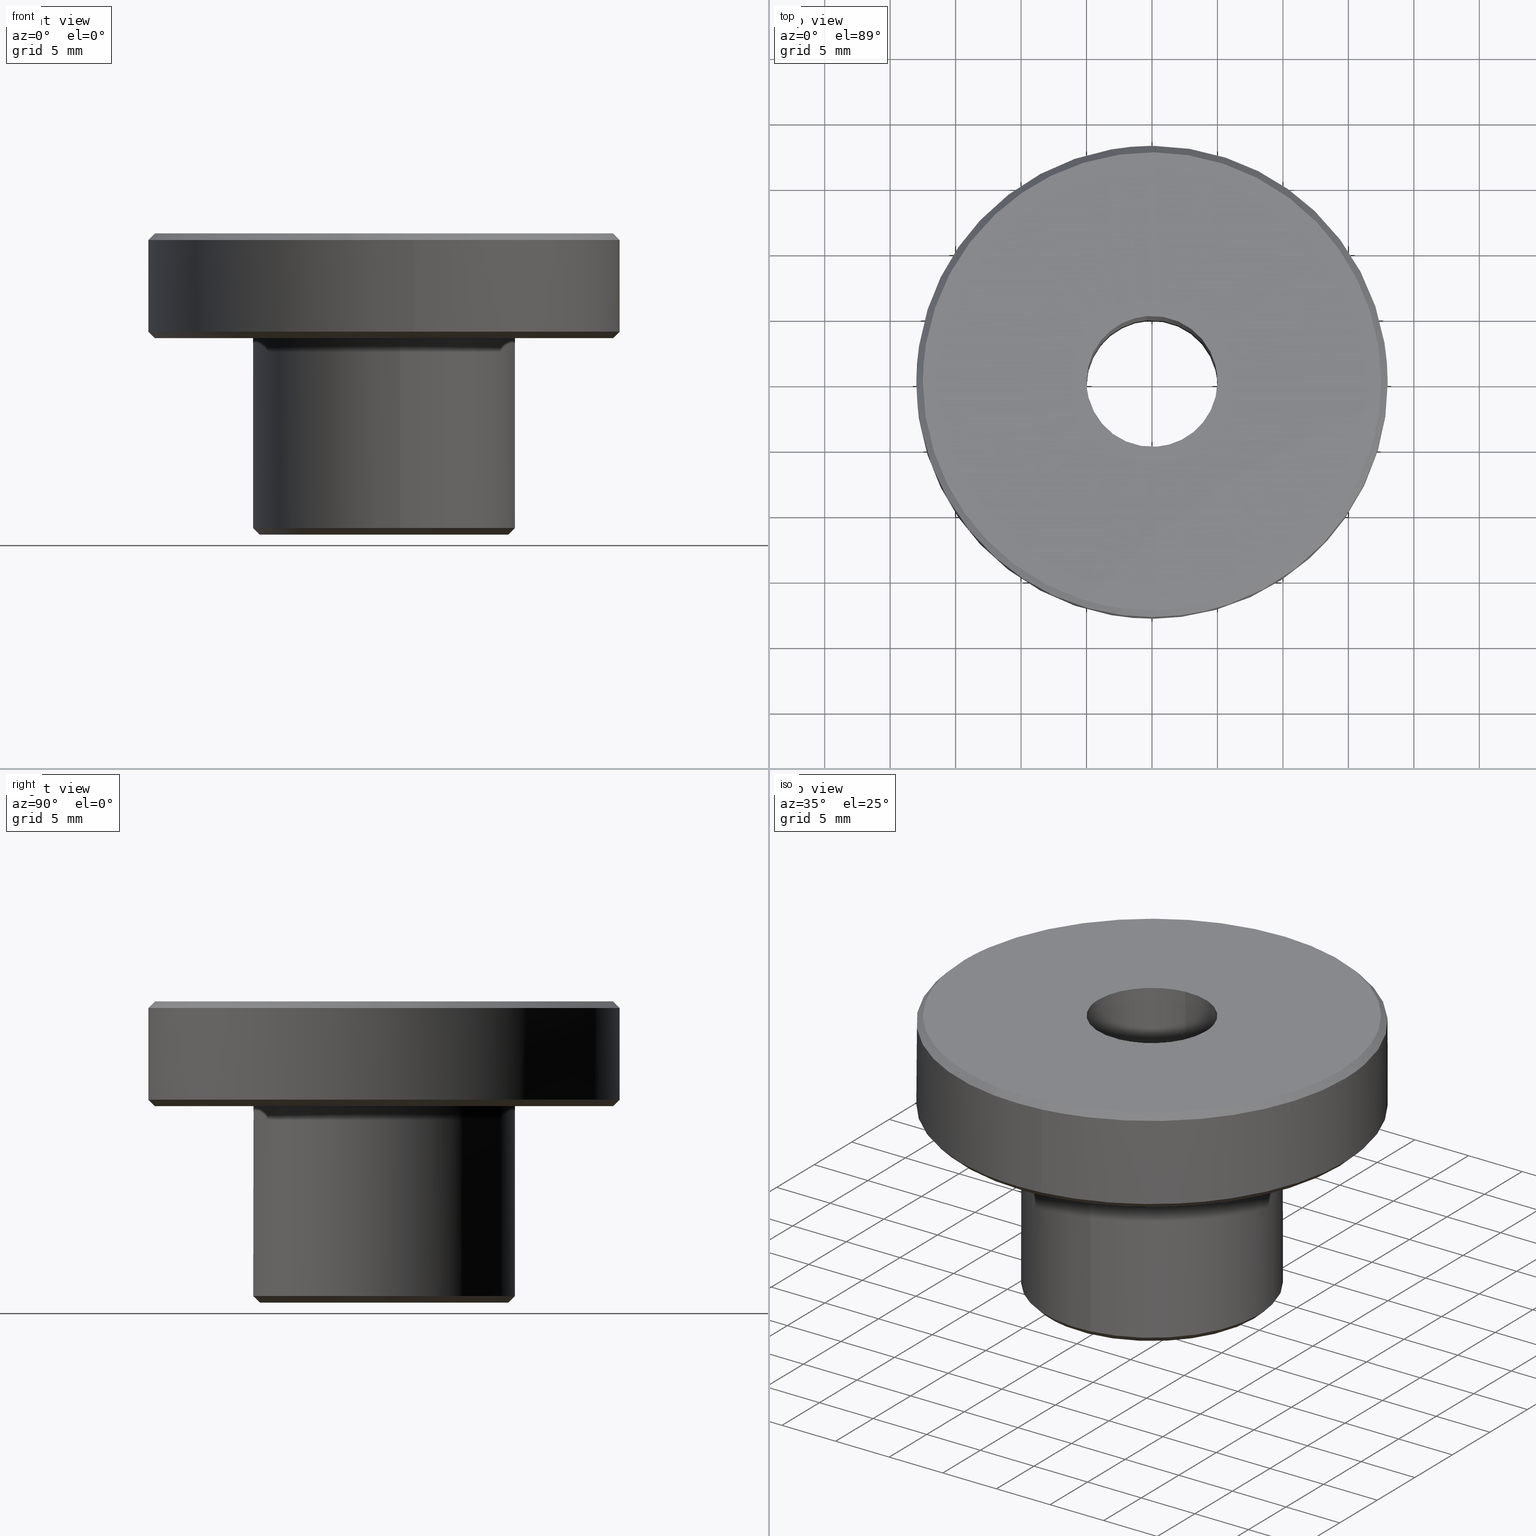
[diagram: canonical four-view strip — front | top / right | iso, engineering-drawing reading convention]
A machine part, canonical four-view strip (front | top / right | iso — engineering-drawing reading convention). The complete STEP part file that produces these views, byte-faithful:
ISO-10303-21;
HEADER;
/****************************************************************
 * Generated by software with PDE/Lib inside                    *
 * PDElib Version 4.4.1-0003, patched  Thursday August 19 11:58 *
 * International Technegroup Inc. (www.iti-oh.com)              *
 ****************************************************************/
FILE_DESCRIPTION((''),'2;1');
FILE_NAME('','2005-07-15T10:45:09',(''),(''),'','CADfix','');
FILE_SCHEMA(('AUTOMOTIVE_DESIGN'));
ENDSEC;
DATA;
#5=APPLICATION_CONTEXT('automotive design');
#6=APPLICATION_PROTOCOL_DEFINITION('Draft International Standard','automotive_design',1998,#5);
#7=PRODUCT_CONTEXT('None',#5,'mechanical');
#8=PRODUCT('knob','','None',(#7));
#9=PRODUCT_RELATED_PRODUCT_CATEGORY('part','description',(#8));
#10=PRODUCT_DEFINITION_FORMATION('None','None',#8);
#11=PRODUCT_DEFINITION_CONTEXT('part definition',#5,'design');
#12=PRODUCT_DEFINITION('None','None',#10,#11);
#18=(NAMED_UNIT(*)PLANE_ANGLE_UNIT()SI_UNIT($,.RADIAN.));
#19=DIMENSIONAL_EXPONENTS(0.0,0.0,0.0,0.0,0.0,0.0,0.0);
#20=PLANE_ANGLE_MEASURE_WITH_UNIT(PLANE_ANGLE_MEASURE(0.017453292500000),#18);
#24=(CONVERSION_BASED_UNIT('DEGREE',#20)NAMED_UNIT(#19)PLANE_ANGLE_UNIT());
#28=(NAMED_UNIT(*)SI_UNIT($,.STERADIAN.)SOLID_ANGLE_UNIT());
#32=(LENGTH_UNIT()NAMED_UNIT(*)SI_UNIT(.MILLI.,.METRE.));
#34=UNCERTAINTY_MEASURE_WITH_UNIT(LENGTH_MEASURE(0.001000000000000),#32,'DISTANCE_ACCURACY_VALUE','');
#36=(GEOMETRIC_REPRESENTATION_CONTEXT(3)GLOBAL_UNCERTAINTY_ASSIGNED_CONTEXT((#34))GLOBAL_UNIT_ASSIGNED_CONTEXT((#24,#28,#32))REPRESENTATION_CONTEXT('None','None'));
#37=AXIS2_PLACEMENT_3D('',#38,#39,#40);
#38=CARTESIAN_POINT('',(0.0,0.0,0.0));
#39=DIRECTION('',(0.0,0.0,1.0));
#40=DIRECTION('',(1.0,0.0,0.0));
#41=ADVANCED_BREP_SHAPE_REPRESENTATION('',(#37,#1111),#36);
#42=PRODUCT_DEFINITION_SHAPE('','',#12);
#43=SHAPE_DEFINITION_REPRESENTATION(#42,#41);
#44=CARTESIAN_POINT('',(-2.170688436371020,-17.352255414274158,23.012499999999999));
#45=CARTESIAN_POINT('',(-17.622727873411552,-15.419275376604753,23.012500000000006));
#46=CARTESIAN_POINT('',(-17.486834129584739,0.152605289527814,23.012499999999999));
#47=CARTESIAN_POINT('',(-17.334228840056934,17.639439419112552,23.012500000000006));
#48=CARTESIAN_POINT('',(0.152605289527814,17.486834129584739,23.012499999999999));
#49=CARTESIAN_POINT('',(-2.235894427463576,-17.873505259724336,22.487187500000001));
#50=CARTESIAN_POINT('',(-18.152102525934822,-15.882459828142810,22.487187500000001));
#51=CARTESIAN_POINT('',(-18.012126627294339,0.157189447706803,22.487187500000001));
#52=CARTESIAN_POINT('',(-17.854937179587541,18.169316075001138,22.487187500000005));
#53=CARTESIAN_POINT('',(0.157189447706803,18.012126627294339,22.487187500000001));
#61=(BOUNDED_SURFACE()B_SPLINE_SURFACE(2,1,((#44,#49),(#45,#50),(#46,#51),(#47,#52),(#48,#53)),.UNSPECIFIED.,.F.,.F.,.U.)B_SPLINE_SURFACE_WITH_KNOTS((3,2,3),(2,2),(0.0,27.457036541059701,57.301641476994170),(0.0,1.0),.UNSPECIFIED.)GEOMETRIC_REPRESENTATION_ITEM()RATIONAL_B_SPLINE_SURFACE(((0.956886118190660,0.956886118190660),(0.730538238691624,0.730538238691624),(1.0,1.0),(0.707106781186548,0.707106781186548),(1.0,1.0)))REPRESENTATION_ITEM('')SURFACE());
#62=CARTESIAN_POINT('',(-2.234304037480998,-17.860791848859769,22.499999999994461));
#63=VERTEX_POINT('',#62);
#64=CARTESIAN_POINT('',(-18.0,0.0,22.500000000000000));
#65=VERTEX_POINT('',#64);
#66=CARTESIAN_POINT('',(-2.234304037480997,-17.860791848859773,22.499999999994454));
#67=CARTESIAN_POINT('',(-18.0,-15.888574802626337,22.500000000000007));
#68=CARTESIAN_POINT('',(-18.0,0.0,22.500000000000000));
#76=(BOUNDED_CURVE()B_SPLINE_CURVE(2,(#66,#67,#68),.UNSPECIFIED.,.F.,.U.)B_SPLINE_CURVE_WITH_KNOTS((3,3),(0.771473928971520,1.0),.UNSPECIFIED.)CURVE()GEOMETRIC_REPRESENTATION_ITEM()RATIONAL_B_SPLINE_CURVE((0.954005430273129,0.732265053894708,1.0))REPRESENTATION_ITEM(''));
#77=EDGE_CURVE('',#63,#65,#76,.T.);
#78=ORIENTED_EDGE('',*,*,#77,.F.);
#79=CARTESIAN_POINT('',(-2.172240036428871,-17.364658741946990,22.999999999996010));
#80=VERTEX_POINT('',#79);
#81=CARTESIAN_POINT('',(-2.172240036428871,-17.364658741946990,22.999999999996010));
#82=CARTESIAN_POINT('',(-2.234304037480998,-17.860791848859769,22.499999999994461));
#83=QUASI_UNIFORM_CURVE('',1,(#81,#82),.UNSPECIFIED.,.F.,.U.);
#84=EDGE_CURVE('',#80,#63,#83,.T.);
#85=ORIENTED_EDGE('',*,*,#84,.F.);
#86=CARTESIAN_POINT('',(-17.500000000000000,0.0,23.0));
#87=VERTEX_POINT('',#86);
#88=CARTESIAN_POINT('',(-17.500000000000000,0.0,23.0));
#89=CARTESIAN_POINT('',(-17.500000000000000,-15.447225502572767,23.0));
#90=CARTESIAN_POINT('',(-2.172240036428871,-17.364658741946986,22.999999999996010));
#98=(BOUNDED_CURVE()B_SPLINE_CURVE(2,(#88,#89,#90),.UNSPECIFIED.,.F.,.U.)B_SPLINE_CURVE_WITH_KNOTS((3,3),(0.500000000000000,0.728526071028690),.UNSPECIFIED.)CURVE()GEOMETRIC_REPRESENTATION_ITEM()RATIONAL_B_SPLINE_CURVE((1.0,0.732265053894462,0.954005430273536))REPRESENTATION_ITEM(''));
#99=EDGE_CURVE('',#87,#80,#98,.T.);
#100=ORIENTED_EDGE('',*,*,#99,.F.);
#101=CARTESIAN_POINT('',(0.152714371254918,17.499333653627261,22.999999999995470));
#102=VERTEX_POINT('',#101);
#103=CARTESIAN_POINT('',(0.152714371254919,17.499333653627257,22.999999999995470));
#104=CARTESIAN_POINT('',(0.076358639395615,17.499999999999996,23.000000000000004));
#105=CARTESIAN_POINT('',(0.0,17.500000000000000,23.0));
#106=CARTESIAN_POINT('',(-17.499999999999996,17.499999999999996,22.999999999999993));
#107=CARTESIAN_POINT('',(-17.500000000000000,0.0,23.0));
#115=(BOUNDED_CURVE()B_SPLINE_CURVE(2,(#103,#104,#105,#106,#107),.UNSPECIFIED.,.F.,.U.)B_SPLINE_CURVE_WITH_KNOTS((3,2,3),(0.248460105664342,0.250000000000000,0.500000000000000),.UNSPECIFIED.)CURVE()GEOMETRIC_REPRESENTATION_ITEM()RATIONAL_B_SPLINE_CURVE((0.996414028098853,0.998195901565586,1.0,0.707106781186548,1.0))REPRESENTATION_ITEM(''));
#116=EDGE_CURVE('',#102,#87,#115,.T.);
#117=ORIENTED_EDGE('',*,*,#116,.F.);
#118=CARTESIAN_POINT('',(0.157077639026141,17.999314615162131,22.499999999992468));
#119=VERTEX_POINT('',#118);
#120=CARTESIAN_POINT('',(0.152714371254918,17.499333653627261,22.999999999995470));
#121=CARTESIAN_POINT('',(0.157077639026141,17.999314615162131,22.499999999992468));
#122=QUASI_UNIFORM_CURVE('',1,(#120,#121),.UNSPECIFIED.,.F.,.U.);
#123=EDGE_CURVE('',#102,#119,#122,.T.);
#124=ORIENTED_EDGE('',*,*,#123,.T.);
#125=CARTESIAN_POINT('',(-0.157065289093424,17.999314722922350,22.500000000000039));
#126=VERTEX_POINT('',#125);
#127=CARTESIAN_POINT('',(-0.157065289093424,17.999314722922346,22.500000000000036));
#128=CARTESIAN_POINT('',(-0.078534139481322,18.0,22.499999999999996));
#129=CARTESIAN_POINT('',(0.0,18.0,22.500000000000000));
#130=CARTESIAN_POINT('',(0.078540314827987,18.0,22.500000000000000));
#131=CARTESIAN_POINT('',(0.157077639026141,17.999314615162131,22.499999999992461));
#139=(BOUNDED_CURVE()B_SPLINE_CURVE(2,(#127,#128,#129,#130,#131),.UNSPECIFIED.,.F.,.U.)B_SPLINE_CURVE_WITH_KNOTS((3,2,3),(0.248460226521948,0.250000000000000,0.251539894336071),.UNSPECIFIED.)CURVE()GEOMETRIC_REPRESENTATION_ITEM()RATIONAL_B_SPLINE_CURVE((0.996414307797352,0.998196043159079,1.0,0.998195901565103,0.996414028097898))REPRESENTATION_ITEM(''));
#140=EDGE_CURVE('',#126,#119,#139,.T.);
#141=ORIENTED_EDGE('',*,*,#140,.F.);
#142=CARTESIAN_POINT('',(-18.0,0.0,22.500000000000000));
#143=CARTESIAN_POINT('',(-18.000000000000004,17.843614034217900,22.499999999999993));
#144=CARTESIAN_POINT('',(-0.157065289093424,17.999314722922346,22.500000000000036));
#152=(BOUNDED_CURVE()B_SPLINE_CURVE(2,(#142,#143,#144),.UNSPECIFIED.,.F.,.U.)B_SPLINE_CURVE_WITH_KNOTS((3,3),(0.0,0.248460226521948),.UNSPECIFIED.)CURVE()GEOMETRIC_REPRESENTATION_ITEM()RATIONAL_B_SPLINE_CURVE((1.0,0.708910738027468,0.996414307797352))REPRESENTATION_ITEM(''));
#153=EDGE_CURVE('',#65,#126,#152,.T.);
#154=ORIENTED_EDGE('',*,*,#153,.F.);
#155=EDGE_LOOP('',(#78,#85,#100,#117,#124,#141,#154));
#156=FACE_OUTER_BOUND('',#155,.T.);
#157=ADVANCED_FACE('',(#156),#61,.T.);
#158=CARTESIAN_POINT('',(0.152605289527814,17.486834129584739,23.012499999999999));
#159=CARTESIAN_POINT('',(17.639439419112552,17.334228840056934,23.012500000000006));
#160=CARTESIAN_POINT('',(17.486834129584739,-0.152605289527814,23.012499999999999));
#161=CARTESIAN_POINT('',(17.334228840056934,-17.639439419112552,23.012500000000006));
#162=CARTESIAN_POINT('',(-0.152605289527814,-17.486834129584739,23.012499999999999));
#163=CARTESIAN_POINT('',(-1.165544654781064,-17.477994341664115,23.012500000000006));
#164=CARTESIAN_POINT('',(-2.170688436371020,-17.352255414274158,23.012499999999999));
#165=CARTESIAN_POINT('',(0.157189447706803,18.012126627294339,22.487187500000001));
#166=CARTESIAN_POINT('',(18.169316075001138,17.854937179587541,22.487187500000005));
#167=CARTESIAN_POINT('',(18.012126627294339,-0.157189447706803,22.487187500000001));
#168=CARTESIAN_POINT('',(17.854937179587541,-18.169316075001138,22.487187500000005));
#169=CARTESIAN_POINT('',(-0.157189447706803,-18.012126627294339,22.487187500000001));
#170=CARTESIAN_POINT('',(-1.200556816408777,-18.003021298210488,22.487187500000001));
#171=CARTESIAN_POINT('',(-2.235894427463576,-17.873505259724336,22.487187500000001));
#179=(BOUNDED_SURFACE()B_SPLINE_SURFACE(2,1,((#158,#165),(#159,#166),(#160,#167),(#161,#168),(#162,#169),(#163,#170),(#164,#171)),.UNSPECIFIED.,.F.,.F.,.U.)B_SPLINE_SURFACE_WITH_KNOTS((3,2,2,3),(2,2),(0.0,29.844604935934470,59.689209871868933,62.076778266743688),(0.0,1.0),.UNSPECIFIED.)GEOMETRIC_REPRESENTATION_ITEM()RATIONAL_B_SPLINE_SURFACE(((1.0,1.0),(0.707106781186548,0.707106781186548),(1.0,1.0),(0.707106781186548,0.707106781186548),(1.0,1.0),(0.976568542494924,0.976568542494924),(0.956886118190660,0.956886118190660)))REPRESENTATION_ITEM('')SURFACE());
#180=CARTESIAN_POINT('',(2.234296449453625,-17.860792798078709,22.500000000000060));
#181=VERTEX_POINT('',#180);
#182=CARTESIAN_POINT('',(2.234296449453625,-17.860792798078712,22.500000000000060));
#183=CARTESIAN_POINT('',(1.121484857198190,-18.000000000000004,22.500000000000004));
#184=CARTESIAN_POINT('',(0.0,-18.0,22.500000000000000));
#185=CARTESIAN_POINT('',(-1.121488695646812,-18.000000000000004,22.500000000000000));
#186=CARTESIAN_POINT('',(-2.234304037480999,-17.860791848859776,22.499999999994454));
#194=(BOUNDED_CURVE()B_SPLINE_CURVE(2,(#182,#183,#184,#185,#186),.UNSPECIFIED.,.F.,.U.)B_SPLINE_CURVE_WITH_KNOTS((3,2,3),(0.728526142676878,0.750000000000000,0.771473928971521),.UNSPECIFIED.)CURVE()GEOMETRIC_REPRESENTATION_ITEM()RATIONAL_B_SPLINE_CURVE((0.954005569315019,0.974841811233160,1.0,0.974841727291839,0.954005430273128))REPRESENTATION_ITEM(''));
#195=EDGE_CURVE('',#181,#63,#194,.T.);
#196=ORIENTED_EDGE('',*,*,#195,.F.);
#197=CARTESIAN_POINT('',(18.0,0.0,22.500000000000000));
#198=VERTEX_POINT('',#197);
#199=CARTESIAN_POINT('',(18.0,0.0,22.500000000000000));
#200=CARTESIAN_POINT('',(18.0,-15.888581605421901,22.499999999999996));
#201=CARTESIAN_POINT('',(2.234296449453625,-17.860792798078712,22.500000000000060));
#209=(BOUNDED_CURVE()B_SPLINE_CURVE(2,(#199,#200,#201),.UNSPECIFIED.,.F.,.U.)B_SPLINE_CURVE_WITH_KNOTS((3,3),(0.500000000000000,0.728526142676878),.UNSPECIFIED.)CURVE()GEOMETRIC_REPRESENTATION_ITEM()RATIONAL_B_SPLINE_CURVE((1.0,0.732264969953387,0.954005569315019))REPRESENTATION_ITEM(''));
#210=EDGE_CURVE('',#198,#181,#209,.T.);
#211=ORIENTED_EDGE('',*,*,#210,.F.);
#212=CARTESIAN_POINT('',(0.157077639026141,17.999314615162135,22.499999999992465));
#213=CARTESIAN_POINT('',(18.0,17.843601790599877,22.500000000000000));
#214=CARTESIAN_POINT('',(18.0,0.0,22.500000000000000));
#222=(BOUNDED_CURVE()B_SPLINE_CURVE(2,(#212,#213,#214),.UNSPECIFIED.,.F.,.U.)B_SPLINE_CURVE_WITH_KNOTS((3,3),(0.251539894336070,0.500000000000000),.UNSPECIFIED.)CURVE()GEOMETRIC_REPRESENTATION_ITEM()RATIONAL_B_SPLINE_CURVE((0.996414028097899,0.708910879621444,1.0))REPRESENTATION_ITEM(''));
#223=EDGE_CURVE('',#119,#198,#222,.T.);
#224=ORIENTED_EDGE('',*,*,#223,.F.);
#225=ORIENTED_EDGE('',*,*,#123,.F.);
#226=CARTESIAN_POINT('',(17.500000000000000,0.0,23.0));
#227=VERTEX_POINT('',#226);
#228=CARTESIAN_POINT('',(17.500000000000000,0.0,23.0));
#229=CARTESIAN_POINT('',(17.500000000000004,17.347946185346032,23.000000000000007));
#230=CARTESIAN_POINT('',(0.152714371254918,17.499333653627264,22.999999999995463));
#238=(BOUNDED_CURVE()B_SPLINE_CURVE(2,(#228,#229,#230),.UNSPECIFIED.,.F.,.U.)B_SPLINE_CURVE_WITH_KNOTS((3,3),(0.0,0.248460105664342),.UNSPECIFIED.)CURVE()GEOMETRIC_REPRESENTATION_ITEM()RATIONAL_B_SPLINE_CURVE((1.0,0.708910879620962,0.996414028098853))REPRESENTATION_ITEM(''));
#239=EDGE_CURVE('',#227,#102,#238,.T.);
#240=ORIENTED_EDGE('',*,*,#239,.F.);
#241=CARTESIAN_POINT('',(-2.172240036428871,-17.364658741946993,22.999999999996014));
#242=CARTESIAN_POINT('',(-1.090336231867875,-17.499999999999996,22.999999999999993));
#243=CARTESIAN_POINT('',(0.0,-17.500000000000000,23.0));
#244=CARTESIAN_POINT('',(17.499999999999996,-17.499999999999996,22.999999999999993));
#245=CARTESIAN_POINT('',(17.500000000000000,0.0,23.0));
#253=(BOUNDED_CURVE()B_SPLINE_CURVE(2,(#241,#242,#243,#244,#245),.UNSPECIFIED.,.F.,.U.)B_SPLINE_CURVE_WITH_KNOTS((3,2,3),(0.728526071028690,0.750000000000000,1.0),.UNSPECIFIED.)CURVE()GEOMETRIC_REPRESENTATION_ITEM()RATIONAL_B_SPLINE_CURVE((0.954005430273537,0.974841727292086,1.0,0.707106781186548,1.0))REPRESENTATION_ITEM(''));
#254=EDGE_CURVE('',#80,#227,#253,.T.);
#255=ORIENTED_EDGE('',*,*,#254,.F.);
#256=ORIENTED_EDGE('',*,*,#84,.T.);
#257=EDGE_LOOP('',(#196,#211,#224,#225,#240,#255,#256));
#258=FACE_OUTER_BOUND('',#257,.T.);
#259=ADVANCED_FACE('',(#258),#179,.T.);
#260=CARTESIAN_POINT('',(14.319921146030703,-10.037555211378052,14.987499999999999));
#261=CARTESIAN_POINT('',(17.535725391208214,-5.449778383031156,14.987499999999997));
#262=CARTESIAN_POINT('',(17.486834129584690,0.152605289527813,14.987500000000001));
#263=CARTESIAN_POINT('',(17.334228840056877,17.639439419112509,14.987499999999997));
#264=CARTESIAN_POINT('',(-0.152605289527813,17.486834129584690,14.987500000000001));
#265=CARTESIAN_POINT('',(-17.639439419112509,17.334228840056877,14.987499999999997));
#266=CARTESIAN_POINT('',(-17.486834129584690,-0.152605289527813,14.987500000000001));
#267=CARTESIAN_POINT('',(-17.334228840056877,-17.639439419112509,14.987499999999997));
#268=CARTESIAN_POINT('',(0.152605289527813,-17.486834129584690,14.987500000000001));
#269=CARTESIAN_POINT('',(14.750081750864162,-10.339076482113015,15.512812500000001));
#270=CARTESIAN_POINT('',(18.062486548867700,-5.613485985995352,15.512812500000004));
#271=CARTESIAN_POINT('',(18.012126627294400,0.157189447706803,15.512812500000001));
#272=CARTESIAN_POINT('',(17.854937179587598,18.169316075001191,15.512812499999999));
#273=CARTESIAN_POINT('',(-0.157189447706803,18.012126627294400,15.512812500000001));
#274=CARTESIAN_POINT('',(-18.169316075001191,17.854937179587598,15.512812499999999));
#275=CARTESIAN_POINT('',(-18.012126627294400,-0.157189447706803,15.512812500000001));
#276=CARTESIAN_POINT('',(-17.854937179587598,-18.169316075001191,15.512812499999999));
#277=CARTESIAN_POINT('',(0.157189447706803,-18.012126627294400,15.512812500000001));
#285=(BOUNDED_SURFACE()B_SPLINE_SURFACE(2,1,((#260,#269),(#261,#270),(#262,#271),(#263,#272),(#264,#273),(#265,#274),(#266,#275),(#267,#276),(#268,#277)),.UNSPECIFIED.,.F.,.F.,.U.)B_SPLINE_SURFACE_WITH_KNOTS((3,2,2,2,3),(2,2),(0.0,11.937841974373820,41.782446910308373,71.627051846242921,101.471656782177500),(0.0,1.0),.UNSPECIFIED.)GEOMETRIC_REPRESENTATION_ITEM()RATIONAL_B_SPLINE_SURFACE(((0.859411254969543,0.859411254969543),(0.882842712474619,0.882842712474619),(1.0,1.0),(0.707106781186548,0.707106781186548),(1.0,1.0),(0.707106781186548,0.707106781186548),(1.0,1.0),(0.707106781186548,0.707106781186548),(1.0,1.0)))REPRESENTATION_ITEM('')SURFACE());
#286=CARTESIAN_POINT('',(17.500000000000000,0.0,15.0));
#287=VERTEX_POINT('',#286);
#288=CARTESIAN_POINT('',(14.330156972439550,-10.044730018534210,15.0));
#289=VERTEX_POINT('',#288);
#290=CARTESIAN_POINT('',(17.500000000000000,0.0,15.0));
#291=CARTESIAN_POINT('',(17.499999999999996,-5.522523042426500,14.999999999999996));
#292=CARTESIAN_POINT('',(14.330156972439546,-10.044730018534207,15.000000000000002));
#300=(BOUNDED_CURVE()B_SPLINE_CURVE(2,(#290,#291,#292),.UNSPECIFIED.,.F.,.U.)B_SPLINE_CURVE_WITH_KNOTS((3,3),(0.0,0.098673726202874),.UNSPECIFIED.)CURVE()GEOMETRIC_REPRESENTATION_ITEM()RATIONAL_B_SPLINE_CURVE((1.0,0.884396538880492,0.860049271925871))REPRESENTATION_ITEM(''));
#301=EDGE_CURVE('',#287,#289,#300,.T.);
#302=ORIENTED_EDGE('',*,*,#301,.F.);
#303=CARTESIAN_POINT('',(-17.500000000000000,0.0,15.0));
#304=VERTEX_POINT('',#303);
#305=CARTESIAN_POINT('',(-17.500000000000000,0.0,15.0));
#306=CARTESIAN_POINT('',(-17.499999999999996,17.499999999999996,14.999999999999995));
#307=CARTESIAN_POINT('',(0.0,17.500000000000000,15.0));
#308=CARTESIAN_POINT('',(17.499999999999996,17.499999999999996,14.999999999999995));
#309=CARTESIAN_POINT('',(17.500000000000000,0.0,15.0));
#317=(BOUNDED_CURVE()B_SPLINE_CURVE(2,(#305,#306,#307,#308,#309),.UNSPECIFIED.,.F.,.U.)B_SPLINE_CURVE_WITH_KNOTS((3,2,3),(0.500000000000000,0.750000000000000,1.0),.UNSPECIFIED.)CURVE()GEOMETRIC_REPRESENTATION_ITEM()RATIONAL_B_SPLINE_CURVE((1.0,0.707106781186548,1.0,0.707106781186548,1.0))REPRESENTATION_ITEM(''));
#318=EDGE_CURVE('',#304,#287,#317,.T.);
#319=ORIENTED_EDGE('',*,*,#318,.F.);
#320=CARTESIAN_POINT('',(0.152714371254917,-17.499333653627250,15.000000000004540));
#321=VERTEX_POINT('',#320);
#322=CARTESIAN_POINT('',(0.152714371254917,-17.499333653627247,15.000000000004546));
#323=CARTESIAN_POINT('',(0.076358639395613,-17.499999999999996,15.000000000000002));
#324=CARTESIAN_POINT('',(0.0,-17.500000000000000,15.0));
#325=CARTESIAN_POINT('',(-17.499999999999996,-17.499999999999996,14.999999999999995));
#326=CARTESIAN_POINT('',(-17.500000000000000,0.0,15.0));
#334=(BOUNDED_CURVE()B_SPLINE_CURVE(2,(#322,#323,#324,#325,#326),.UNSPECIFIED.,.F.,.U.)B_SPLINE_CURVE_WITH_KNOTS((3,2,3),(0.248460105664342,0.250000000000000,0.500000000000000),.UNSPECIFIED.)CURVE()GEOMETRIC_REPRESENTATION_ITEM()RATIONAL_B_SPLINE_CURVE((0.996414028098853,0.998195901565586,1.0,0.707106781186548,1.0))REPRESENTATION_ITEM(''));
#335=EDGE_CURVE('',#321,#304,#334,.T.);
#336=ORIENTED_EDGE('',*,*,#335,.F.);
#337=CARTESIAN_POINT('',(0.157077638971336,-17.999314615155171,15.500000000000069));
#338=VERTEX_POINT('',#337);
#339=CARTESIAN_POINT('',(0.152714371254917,-17.499333653627250,15.000000000004540));
#340=CARTESIAN_POINT('',(0.157077638971336,-17.999314615155171,15.500000000000069));
#341=QUASI_UNIFORM_CURVE('',1,(#339,#340),.UNSPECIFIED.,.F.,.U.);
#342=EDGE_CURVE('',#321,#338,#341,.T.);
#343=ORIENTED_EDGE('',*,*,#342,.T.);
#344=CARTESIAN_POINT('',(-18.0,0.0,15.500000000000000));
#345=VERTEX_POINT('',#344);
#346=CARTESIAN_POINT('',(-18.0,0.0,15.500000000000000));
#347=CARTESIAN_POINT('',(-18.000000000000007,-18.000000000000007,15.500000000000005));
#348=CARTESIAN_POINT('',(0.0,-18.0,15.500000000000000));
#349=CARTESIAN_POINT('',(0.078540314773233,-18.000000000000004,15.499999999999998));
#350=CARTESIAN_POINT('',(0.157077638971336,-17.999314615155175,15.500000000000075));
#358=(BOUNDED_CURVE()B_SPLINE_CURVE(2,(#346,#347,#348,#349,#350),.UNSPECIFIED.,.F.,.U.)B_SPLINE_CURVE_WITH_KNOTS((3,2,3),(0.0,0.250000000000000,0.251539894334999),.UNSPECIFIED.)CURVE()GEOMETRIC_REPRESENTATION_ITEM()RATIONAL_B_SPLINE_CURVE((1.0,0.707106781186547,1.0,0.998195901566358,0.996414028100378))REPRESENTATION_ITEM(''));
#359=EDGE_CURVE('',#345,#338,#358,.T.);
#360=ORIENTED_EDGE('',*,*,#359,.F.);
#361=CARTESIAN_POINT('',(-0.157064489507511,17.999314729899101,15.500000000000000));
#362=VERTEX_POINT('',#361);
#363=CARTESIAN_POINT('',(-0.157064489507511,17.999314729899098,15.500000000000004));
#364=CARTESIAN_POINT('',(-18.0,17.843614826917293,15.499999999999995));
#365=CARTESIAN_POINT('',(-18.0,0.0,15.500000000000000));
#373=(BOUNDED_CURVE()B_SPLINE_CURVE(2,(#363,#364,#365),.UNSPECIFIED.,.F.,.U.)B_SPLINE_CURVE_WITH_KNOTS((3,3),(0.751539765653236,1.0),.UNSPECIFIED.)CURVE()GEOMETRIC_REPRESENTATION_ITEM()RATIONAL_B_SPLINE_CURVE((0.996414325906187,0.708910728860126,1.0))REPRESENTATION_ITEM(''));
#374=EDGE_CURVE('',#362,#345,#373,.T.);
#375=ORIENTED_EDGE('',*,*,#374,.F.);
#376=CARTESIAN_POINT('',(18.0,0.0,15.500000000000000));
#377=VERTEX_POINT('',#376);
#378=CARTESIAN_POINT('',(18.0,0.0,15.500000000000000));
#379=CARTESIAN_POINT('',(18.000000000000007,18.000000000000007,15.500000000000005));
#380=CARTESIAN_POINT('',(0.0,18.0,15.500000000000000));
#381=CARTESIAN_POINT('',(-0.078533739665535,17.999999999999996,15.499999999999998));
#382=CARTESIAN_POINT('',(-0.157064489507511,17.999314729899098,15.500000000000004));
#390=(BOUNDED_CURVE()B_SPLINE_CURVE(2,(#378,#379,#380,#381,#382),.UNSPECIFIED.,.F.,.U.)B_SPLINE_CURVE_WITH_KNOTS((3,2,3),(0.500000000000000,0.750000000000000,0.751539765653236),.UNSPECIFIED.)CURVE()GEOMETRIC_REPRESENTATION_ITEM()RATIONAL_B_SPLINE_CURVE((1.0,0.707106781186547,1.0,0.998196052326421,0.996414325906187))REPRESENTATION_ITEM(''));
#391=EDGE_CURVE('',#377,#362,#390,.T.);
#392=ORIENTED_EDGE('',*,*,#391,.F.);
#393=CARTESIAN_POINT('',(14.739590028790010,-10.331722304785830,15.500000000000380));
#394=VERTEX_POINT('',#393);
#395=CARTESIAN_POINT('',(14.739590028790001,-10.331722304785833,15.500000000000380));
#396=CARTESIAN_POINT('',(17.999999999999993,-5.680309415077398,15.500000000000000));
#397=CARTESIAN_POINT('',(18.0,0.0,15.500000000000000));
#405=(BOUNDED_CURVE()B_SPLINE_CURVE(2,(#395,#396,#397),.UNSPECIFIED.,.F.,.U.)B_SPLINE_CURVE_WITH_KNOTS((3,3),(0.401326273796971,0.500000000000000),.UNSPECIFIED.)CURVE()GEOMETRIC_REPRESENTATION_ITEM()RATIONAL_B_SPLINE_CURVE((0.860049271925794,0.884396538880310,1.0))REPRESENTATION_ITEM(''));
#406=EDGE_CURVE('',#394,#377,#405,.T.);
#407=ORIENTED_EDGE('',*,*,#406,.F.);
#408=CARTESIAN_POINT('',(14.330156972439550,-10.044730018534210,15.0));
#409=CARTESIAN_POINT('',(14.739590028790010,-10.331722304785830,15.500000000000380));
#410=QUASI_UNIFORM_CURVE('',1,(#408,#409),.UNSPECIFIED.,.F.,.U.);
#411=EDGE_CURVE('',#289,#394,#410,.T.);
#412=ORIENTED_EDGE('',*,*,#411,.F.);
#413=EDGE_LOOP('',(#302,#319,#336,#343,#360,#375,#392,#407,#412));
#414=FACE_OUTER_BOUND('',#413,.T.);
#415=ADVANCED_FACE('',(#414),#285,.T.);
#416=CARTESIAN_POINT('',(0.152605289527813,-17.486834129584690,14.987500000000001));
#417=CARTESIAN_POINT('',(9.153404521625713,-17.408285344675011,14.987500000000002));
#418=CARTESIAN_POINT('',(14.319921146030703,-10.037555211378052,14.987499999999999));
#419=CARTESIAN_POINT('',(0.157189447706803,-18.012126627294400,15.512812500000001));
#420=CARTESIAN_POINT('',(9.428366512348630,-17.931218290786557,15.512812500000008));
#421=CARTESIAN_POINT('',(14.750081750864162,-10.339076482113015,15.512812500000001));
#429=(BOUNDED_SURFACE()B_SPLINE_SURFACE(2,1,((#416,#419),(#417,#420),(#418,#421)),.UNSPECIFIED.,.F.,.F.,.U.)B_SPLINE_SURFACE_WITH_KNOTS((3,3),(2,2),(0.0,17.784708021925880),(0.0,1.0),.UNSPECIFIED.)GEOMETRIC_REPRESENTATION_ITEM()RATIONAL_B_SPLINE_SURFACE(((1.0,1.0),(0.824264068711928,0.824264068711928),(0.859411254969543,0.859411254969543)))REPRESENTATION_ITEM('')SURFACE());
#430=CARTESIAN_POINT('',(14.330156972439550,-10.044730018534207,15.000000000000005));
#431=CARTESIAN_POINT('',(9.159947341179224,-17.420728722299302,15.000000000000002));
#432=CARTESIAN_POINT('',(0.152714371254917,-17.499333653627243,15.000000000004542));
#440=(BOUNDED_CURVE()B_SPLINE_CURVE(2,(#430,#431,#432),.UNSPECIFIED.,.F.,.U.)B_SPLINE_CURVE_WITH_KNOTS((3,3),(0.098673726202873,0.248460105664342),.UNSPECIFIED.)CURVE()GEOMETRIC_REPRESENTATION_ITEM()RATIONAL_B_SPLINE_CURVE((0.860049271925871,0.823090203820786,0.996414028098853))REPRESENTATION_ITEM(''));
#441=EDGE_CURVE('',#289,#321,#440,.T.);
#442=ORIENTED_EDGE('',*,*,#441,.F.);
#443=ORIENTED_EDGE('',*,*,#411,.T.);
#444=CARTESIAN_POINT('',(2.234292979299845,-17.860793232175531,15.500000000000000));
#445=VERTEX_POINT('',#444);
#446=CARTESIAN_POINT('',(2.234292979299845,-17.860793232175535,15.500000000000007));
#447=CARTESIAN_POINT('',(10.156768879505131,-16.869732418003473,15.500000000000002));
#448=CARTESIAN_POINT('',(14.739590028790010,-10.331722304785831,15.500000000000387));
#456=(BOUNDED_CURVE()B_SPLINE_CURVE(2,(#446,#447,#448),.UNSPECIFIED.,.F.,.U.)B_SPLINE_CURVE_WITH_KNOTS((3,3),(0.271473824557087,0.401326273796971),.UNSPECIFIED.)CURVE()GEOMETRIC_REPRESENTATION_ITEM()RATIONAL_B_SPLINE_CURVE((0.954005632901279,0.828008805147070,0.860049271925795))REPRESENTATION_ITEM(''));
#457=EDGE_CURVE('',#445,#394,#456,.T.);
#458=ORIENTED_EDGE('',*,*,#457,.F.);
#459=CARTESIAN_POINT('',(0.157077638971336,-17.999314615155168,15.500000000000068));
#460=CARTESIAN_POINT('',(1.199697270601845,-17.990215811473725,15.499999999999998));
#461=CARTESIAN_POINT('',(2.234292979299845,-17.860793232175535,15.500000000000005));
#469=(BOUNDED_CURVE()B_SPLINE_CURVE(2,(#459,#460,#461),.UNSPECIFIED.,.F.,.U.)B_SPLINE_CURVE_WITH_KNOTS((3,3),(0.251539894334999,0.271473824557087),.UNSPECIFIED.)CURVE()GEOMETRIC_REPRESENTATION_ITEM()RATIONAL_B_SPLINE_CURVE((0.996414028100378,0.973347678333298,0.954005632901279))REPRESENTATION_ITEM(''));
#470=EDGE_CURVE('',#338,#445,#469,.T.);
#471=ORIENTED_EDGE('',*,*,#470,.F.);
#472=ORIENTED_EDGE('',*,*,#342,.F.);
#473=EDGE_LOOP('',(#442,#443,#458,#471,#472));
#474=FACE_OUTER_BOUND('',#473,.T.);
#475=ADVANCED_FACE('',(#474),#429,.T.);
#476=CARTESIAN_POINT('',(-3.834993910984958,-8.677872893325199,-0.012499999999999));
#477=CARTESIAN_POINT('',(-1.963370728928781,-9.504995345460285,-0.012499999999999));
#478=CARTESIAN_POINT('',(0.082793005540822,-9.487138745071324,-0.012499999999999));
#479=CARTESIAN_POINT('',(9.569931750612147,-9.404345739530502,-0.012499999999999));
#480=CARTESIAN_POINT('',(9.487138745071324,0.082793005540822,-0.012499999999999));
#481=CARTESIAN_POINT('',(9.404345739530502,9.569931750612147,-0.012499999999999));
#482=CARTESIAN_POINT('',(-0.082793005540822,9.487138745071324,-0.012499999999999));
#483=CARTESIAN_POINT('',(-4.047333330101089,-9.158357225791594,0.512812499999944));
#484=CARTESIAN_POINT('',(-2.072080419157019,-10.031276543606490,0.512812499999944));
#485=CARTESIAN_POINT('',(0.087377163719812,-10.012431242780970,0.512812499999944));
#486=CARTESIAN_POINT('',(10.099808406500783,-9.925054079061161,0.512812499999944));
#487=CARTESIAN_POINT('',(10.012431242780970,0.087377163719812,0.512812499999944));
#488=CARTESIAN_POINT('',(9.925054079061161,10.099808406500783,0.512812499999944));
#489=CARTESIAN_POINT('',(-0.087377163719812,10.012431242780970,0.512812499999944));
#497=(BOUNDED_SURFACE()B_SPLINE_SURFACE(2,1,((#476,#483),(#477,#484),(#478,#485),(#479,#486),(#480,#487),(#481,#488),(#482,#489)),.UNSPECIFIED.,.F.,.F.,.U.)B_SPLINE_SURFACE_WITH_KNOTS((3,2,2,3),(2,2),(0.0,4.645135863198720,21.234906803194139,37.824677743189568),(0.0,1.0),.UNSPECIFIED.)GEOMETRIC_REPRESENTATION_ITEM()RATIONAL_B_SPLINE_SURFACE(((0.881905454174416,0.881905454174416),(0.917989898732233,0.917989898732233),(1.0,1.0),(0.707106781186548,0.707106781186548),(1.0,1.0),(0.707106781186548,0.707106781186548),(1.0,1.0)))REPRESENTATION_ITEM('')SURFACE());
#498=CARTESIAN_POINT('',(-4.042154319909006,-9.146638095721006,0.500000000002636));
#499=VERTEX_POINT('',#498);
#500=CARTESIAN_POINT('',(1.241268919189210,-9.922663527003707,0.499999999999942));
#501=VERTEX_POINT('',#500);
#502=CARTESIAN_POINT('',(-4.042154319909007,-9.146638095721006,0.500000000002636));
#503=CARTESIAN_POINT('',(-2.111156172552140,-9.999999999999998,0.499999999999945));
#504=CARTESIAN_POINT('',(0.0,-10.0,0.499999999999945));
#505=CARTESIAN_POINT('',(0.623043659552424,-10.000000000000002,0.499999999999945));
#506=CARTESIAN_POINT('',(1.241268919189210,-9.922663527003707,0.499999999999942));
#514=(BOUNDED_CURVE()B_SPLINE_CURVE(2,(#502,#503,#504,#505,#506),.UNSPECIFIED.,.F.,.U.)B_SPLINE_CURVE_WITH_KNOTS((3,2,3),(0.181361578458937,0.250000000000000,0.271473740287339),.UNSPECIFIED.)CURVE()GEOMETRIC_REPRESENTATION_ITEM()RATIONAL_B_SPLINE_CURVE((0.883326595750833,0.919585087122254,1.0,0.974841948349109,0.954005796436511))REPRESENTATION_ITEM(''));
#515=EDGE_CURVE('',#499,#501,#514,.T.);
#516=ORIENTED_EDGE('',*,*,#515,.F.);
#517=CARTESIAN_POINT('',(-3.840046603890534,-8.689306190942896,5.149898E-013));
#518=VERTEX_POINT('',#517);
#519=CARTESIAN_POINT('',(-3.840046603890534,-8.689306190942896,5.149898E-013));
#520=CARTESIAN_POINT('',(-4.042154319909006,-9.146638095721006,0.500000000002636));
#521=QUASI_UNIFORM_CURVE('',1,(#519,#520),.UNSPECIFIED.,.F.,.U.);
#522=EDGE_CURVE('',#518,#499,#521,.T.);
#523=ORIENTED_EDGE('',*,*,#522,.F.);
#524=CARTESIAN_POINT('',(9.500000000000000,0.0,0.0));
#525=VERTEX_POINT('',#524);
#526=CARTESIAN_POINT('',(9.500000000000000,0.0,0.0));
#527=CARTESIAN_POINT('',(9.500000000000000,-9.500000000000000,0.0));
#528=CARTESIAN_POINT('',(0.0,-9.500000000000000,0.0));
#529=CARTESIAN_POINT('',(-2.005598363899188,-9.500000000000000,0.0));
#530=CARTESIAN_POINT('',(-3.840046603890533,-8.689306190942896,5.149898E-013));
#538=(BOUNDED_CURVE()B_SPLINE_CURVE(2,(#526,#527,#528,#529,#530),.UNSPECIFIED.,.F.,.U.)B_SPLINE_CURVE_WITH_KNOTS((3,2,3),(0.500000000000000,0.750000000000000,0.818638421540265),.UNSPECIFIED.)CURVE()GEOMETRIC_REPRESENTATION_ITEM()RATIONAL_B_SPLINE_CURVE((1.0,0.707106781186548,1.0,0.919585087123189,0.883326595751676))REPRESENTATION_ITEM(''));
#539=EDGE_CURVE('',#525,#518,#538,.T.);
#540=ORIENTED_EDGE('',*,*,#539,.F.);
#541=CARTESIAN_POINT('',(-0.082902087259469,9.499638269112790,3.381165E-012));
#542=VERTEX_POINT('',#541);
#543=CARTESIAN_POINT('',(-0.082902087259469,9.499638269112790,3.381165E-012));
#544=CARTESIAN_POINT('',(-0.041451832821553,9.500000000000002,0.0));
#545=CARTESIAN_POINT('',(0.0,9.500000000000000,0.0));
#546=CARTESIAN_POINT('',(9.500000000000000,9.500000000000000,0.0));
#547=CARTESIAN_POINT('',(9.500000000000000,0.0,0.0));
#555=(BOUNDED_CURVE()B_SPLINE_CURVE(2,(#543,#544,#545,#546,#547),.UNSPECIFIED.,.F.,.U.)B_SPLINE_CURVE_WITH_KNOTS((3,2,3),(0.248460105664090,0.250000000000000,0.500000000000000),.UNSPECIFIED.)CURVE()GEOMETRIC_REPRESENTATION_ITEM()RATIONAL_B_SPLINE_CURVE((0.996414028098270,0.998195901565291,1.0,0.707106781186548,1.0))REPRESENTATION_ITEM(''));
#556=EDGE_CURVE('',#542,#525,#555,.T.);
#557=ORIENTED_EDGE('',*,*,#556,.F.);
#558=CARTESIAN_POINT('',(-0.087261004263184,9.999619268604203,0.499999999998073));
#559=VERTEX_POINT('',#558);
#560=CARTESIAN_POINT('',(-0.082902087259469,9.499638269112790,3.381165E-012));
#561=CARTESIAN_POINT('',(-0.087261004263184,9.999619268604203,0.499999999998073));
#562=QUASI_UNIFORM_CURVE('',1,(#560,#561),.UNSPECIFIED.,.F.,.U.);
#563=EDGE_CURVE('',#542,#559,#562,.T.);
#564=ORIENTED_EDGE('',*,*,#563,.T.);
#565=CARTESIAN_POINT('',(10.0,0.0,0.499999999999945));
#566=VERTEX_POINT('',#565);
#567=CARTESIAN_POINT('',(10.0,0.0,0.499999999999945));
#568=CARTESIAN_POINT('',(10.000000000000002,10.000000000000002,0.499999999999945));
#569=CARTESIAN_POINT('',(0.0,10.0,0.499999999999945));
#570=CARTESIAN_POINT('',(-0.043631332722512,10.000000000000002,0.499999999999945));
#571=CARTESIAN_POINT('',(-0.087261004263184,9.999619268604203,0.499999999998073));
#579=(BOUNDED_CURVE()B_SPLINE_CURVE(2,(#567,#568,#569,#570,#571),.UNSPECIFIED.,.F.,.U.)B_SPLINE_CURVE_WITH_KNOTS((3,2,3),(0.500000000000000,0.750000000000000,0.751539817697262),.UNSPECIFIED.)CURVE()GEOMETRIC_REPRESENTATION_ITEM()RATIONAL_B_SPLINE_CURVE((1.0,0.707106781186548,1.0,0.998195991353052,0.996414205461629))REPRESENTATION_ITEM(''));
#580=EDGE_CURVE('',#566,#559,#579,.T.);
#581=ORIENTED_EDGE('',*,*,#580,.F.);
#582=CARTESIAN_POINT('',(1.241268919189210,-9.922663527003707,0.499999999999942));
#583=CARTESIAN_POINT('',(10.0,-8.826995954229798,0.499999999999945));
#584=CARTESIAN_POINT('',(10.0,0.0,0.499999999999945));
#592=(BOUNDED_CURVE()B_SPLINE_CURVE(2,(#582,#583,#584),.UNSPECIFIED.,.F.,.U.)B_SPLINE_CURVE_WITH_KNOTS((3,3),(0.271473740287339,0.500000000000000),.UNSPECIFIED.)CURVE()GEOMETRIC_REPRESENTATION_ITEM()RATIONAL_B_SPLINE_CURVE((0.954005796436511,0.732264832837439,1.0))REPRESENTATION_ITEM(''));
#593=EDGE_CURVE('',#501,#566,#592,.T.);
#594=ORIENTED_EDGE('',*,*,#593,.F.);
#595=EDGE_LOOP('',(#516,#523,#540,#557,#564,#581,#594));
#596=FACE_OUTER_BOUND('',#595,.T.);
#597=ADVANCED_FACE('',(#596),#497,.T.);
#598=CARTESIAN_POINT('',(-0.082793005540822,9.487138745071324,-0.012499999999999));
#599=CARTESIAN_POINT('',(-9.569931750612147,9.404345739530502,-0.012499999999999));
#600=CARTESIAN_POINT('',(-9.487138745071324,-0.082793005540822,-0.012499999999999));
#601=CARTESIAN_POINT('',(-9.433722935820269,-6.203638483183840,-0.012499999999999));
#602=CARTESIAN_POINT('',(-3.834993910984958,-8.677872893325199,-0.012499999999999));
#603=CARTESIAN_POINT('',(-0.087377163719812,10.012431242780970,0.512812499999944));
#604=CARTESIAN_POINT('',(-10.099808406500783,9.925054079061161,0.512812499999944));
#605=CARTESIAN_POINT('',(-10.012431242780970,-0.087377163719812,0.512812499999944));
#606=CARTESIAN_POINT('',(-9.956057858584234,-6.547127162045237,0.512812499999944));
#607=CARTESIAN_POINT('',(-4.047333330101089,-9.158357225791594,0.512812499999944));
#615=(BOUNDED_SURFACE()B_SPLINE_SURFACE(2,1,((#598,#603),(#599,#604),(#600,#605),(#601,#606),(#602,#607)),.UNSPECIFIED.,.F.,.F.,.U.)B_SPLINE_SURFACE_WITH_KNOTS((3,2,3),(2,2),(0.0,16.589770939995429,28.534406016792129),(0.0,1.0),.UNSPECIFIED.)GEOMETRIC_REPRESENTATION_ITEM()RATIONAL_B_SPLINE_SURFACE(((1.0,1.0),(0.707106781186548,0.707106781186548),(1.0,1.0),(0.789116882454314,0.789116882454314),(0.881905454174416,0.881905454174416)))REPRESENTATION_ITEM('')SURFACE());
#616=CARTESIAN_POINT('',(-10.0,0.0,0.499999999999945));
#617=VERTEX_POINT('',#616);
#618=CARTESIAN_POINT('',(-10.0,0.0,0.499999999999945));
#619=CARTESIAN_POINT('',(-10.0,-6.513700025870834,0.499999999999945));
#620=CARTESIAN_POINT('',(-4.042154319909006,-9.146638095721007,0.500000000002636));
#628=(BOUNDED_CURVE()B_SPLINE_CURVE(2,(#618,#619,#620),.UNSPECIFIED.,.F.,.U.)B_SPLINE_CURVE_WITH_KNOTS((3,3),(0.0,0.181361578458937),.UNSPECIFIED.)CURVE()GEOMETRIC_REPRESENTATION_ITEM()RATIONAL_B_SPLINE_CURVE((1.0,0.787521694064293,0.883326595750833))REPRESENTATION_ITEM(''));
#629=EDGE_CURVE('',#617,#499,#628,.T.);
#630=ORIENTED_EDGE('',*,*,#629,.F.);
#631=CARTESIAN_POINT('',(-0.087261004263184,9.999619268604203,0.499999999998073));
#632=CARTESIAN_POINT('',(-10.0,9.913116419197188,0.499999999999945));
#633=CARTESIAN_POINT('',(-10.0,0.0,0.499999999999945));
#641=(BOUNDED_CURVE()B_SPLINE_CURVE(2,(#631,#632,#633),.UNSPECIFIED.,.F.,.U.)B_SPLINE_CURVE_WITH_KNOTS((3,3),(0.751539817697262,1.0),.UNSPECIFIED.)CURVE()GEOMETRIC_REPRESENTATION_ITEM()RATIONAL_B_SPLINE_CURVE((0.996414205461629,0.708910789833496,1.0))REPRESENTATION_ITEM(''));
#642=EDGE_CURVE('',#559,#617,#641,.T.);
#643=ORIENTED_EDGE('',*,*,#642,.F.);
#644=ORIENTED_EDGE('',*,*,#563,.F.);
#645=CARTESIAN_POINT('',(-9.500000000000000,0.0,0.0));
#646=VERTEX_POINT('',#645);
#647=CARTESIAN_POINT('',(-9.500000000000000,0.0,0.0));
#648=CARTESIAN_POINT('',(-9.500000000000000,9.417456500602951,0.0));
#649=CARTESIAN_POINT('',(-0.082902087259469,9.499638269112790,3.381165E-012));
#657=(BOUNDED_CURVE()B_SPLINE_CURVE(2,(#647,#648,#649),.UNSPECIFIED.,.F.,.U.)B_SPLINE_CURVE_WITH_KNOTS((3,3),(0.0,0.248460105664090),.UNSPECIFIED.)CURVE()GEOMETRIC_REPRESENTATION_ITEM()RATIONAL_B_SPLINE_CURVE((1.0,0.708910879621257,0.996414028098270))REPRESENTATION_ITEM(''));
#658=EDGE_CURVE('',#646,#542,#657,.T.);
#659=ORIENTED_EDGE('',*,*,#658,.F.);
#660=CARTESIAN_POINT('',(-3.840046603890534,-8.689306190942896,5.149898E-013));
#661=CARTESIAN_POINT('',(-9.500000000000000,-6.188015024611857,0.0));
#662=CARTESIAN_POINT('',(-9.500000000000000,0.0,0.0));
#670=(BOUNDED_CURVE()B_SPLINE_CURVE(2,(#660,#661,#662),.UNSPECIFIED.,.F.,.U.)B_SPLINE_CURVE_WITH_KNOTS((3,3),(0.818638421540265,1.0),.UNSPECIFIED.)CURVE()GEOMETRIC_REPRESENTATION_ITEM()RATIONAL_B_SPLINE_CURVE((0.883326595751676,0.787521694063359,1.0))REPRESENTATION_ITEM(''));
#671=EDGE_CURVE('',#518,#646,#670,.T.);
#672=ORIENTED_EDGE('',*,*,#671,.F.);
#673=ORIENTED_EDGE('',*,*,#522,.T.);
#674=EDGE_LOOP('',(#630,#643,#644,#659,#672,#673));
#675=FACE_OUTER_BOUND('',#674,.T.);
#676=ADVANCED_FACE('',(#675),#615,.T.);
#677=CARTESIAN_POINT('',(0.392295478639228,-4.984586668665638,-0.575000000000001));
#678=CARTESIAN_POINT('',(5.376882147304866,-4.592291190026410,-0.575000000000001));
#679=CARTESIAN_POINT('',(4.984586668665638,0.392295478639228,-0.575000000000001));
#680=CARTESIAN_POINT('',(4.592291190026410,5.376882147304866,-0.575000000000001));
#681=CARTESIAN_POINT('',(-0.392295478639228,4.984586668665638,-0.575000000000001));
#682=CARTESIAN_POINT('',(0.392295478639228,-4.984586668665638,23.589375000000000));
#683=CARTESIAN_POINT('',(5.376882147304866,-4.592291190026410,23.589375000000004));
#684=CARTESIAN_POINT('',(4.984586668665638,0.392295478639228,23.589375000000000));
#685=CARTESIAN_POINT('',(4.592291190026410,5.376882147304866,23.589375000000004));
#686=CARTESIAN_POINT('',(-0.392295478639228,4.984586668665638,23.589375000000000));
#694=(BOUNDED_SURFACE()B_SPLINE_SURFACE(2,1,((#677,#682),(#678,#683),(#679,#684),(#680,#685),(#681,#686)),.UNSPECIFIED.,.F.,.F.,.U.)B_SPLINE_SURFACE_WITH_KNOTS((3,2,3),(2,2),(0.0,8.284271247461899,16.568542494923800),(0.0,24.164375000000010),.UNSPECIFIED.)GEOMETRIC_REPRESENTATION_ITEM()RATIONAL_B_SPLINE_SURFACE(((1.0,1.0),(0.707106781186548,0.707106781186548),(1.0,1.0),(0.707106781186548,0.707106781186548),(1.0,1.0)))REPRESENTATION_ITEM('')SURFACE());
#695=CARTESIAN_POINT('',(5.0,0.0,0.0));
#696=VERTEX_POINT('',#695);
#697=CARTESIAN_POINT('',(0.392295478669359,-4.984586668663267,-8.326673E-016));
#698=VERTEX_POINT('',#697);
#699=CARTESIAN_POINT('',(5.0,0.0,0.0));
#700=CARTESIAN_POINT('',(4.999999999999999,-4.621952458234981,0.0));
#701=CARTESIAN_POINT('',(0.392295478669359,-4.984586668663267,-8.326673E-016));
#709=(BOUNDED_CURVE()B_SPLINE_CURVE(2,(#699,#700,#701),.UNSPECIFIED.,.F.,.U.)B_SPLINE_CURVE_WITH_KNOTS((3,3),(0.0,0.236331300630694),.UNSPECIFIED.)CURVE()GEOMETRIC_REPRESENTATION_ITEM()RATIONAL_B_SPLINE_CURVE((1.0,0.723120658607625,0.969723356167490))REPRESENTATION_ITEM(''));
#710=EDGE_CURVE('',#696,#698,#709,.T.);
#711=ORIENTED_EDGE('',*,*,#710,.T.);
#712=CARTESIAN_POINT('',(0.392295478669359,-4.984586668663267,23.0));
#713=VERTEX_POINT('',#712);
#714=CARTESIAN_POINT('',(0.392295478669359,-4.984586668663267,-8.326673E-016));
#715=CARTESIAN_POINT('',(0.392295478669359,-4.984586668663267,23.0));
#716=QUASI_UNIFORM_CURVE('',1,(#714,#715),.UNSPECIFIED.,.F.,.U.);
#717=EDGE_CURVE('',#698,#713,#716,.T.);
#718=ORIENTED_EDGE('',*,*,#717,.T.);
#719=CARTESIAN_POINT('',(5.0,0.0,23.0));
#720=VERTEX_POINT('',#719);
#721=CARTESIAN_POINT('',(5.0,0.0,23.0));
#722=CARTESIAN_POINT('',(4.999999999999999,-4.621952458234981,22.999999999999996));
#723=CARTESIAN_POINT('',(0.392295478669359,-4.984586668663267,23.000000000000007));
#731=(BOUNDED_CURVE()B_SPLINE_CURVE(2,(#721,#722,#723),.UNSPECIFIED.,.F.,.U.)B_SPLINE_CURVE_WITH_KNOTS((3,3),(0.0,0.236331300630694),.UNSPECIFIED.)CURVE()GEOMETRIC_REPRESENTATION_ITEM()RATIONAL_B_SPLINE_CURVE((1.0,0.723120658607625,0.969723356167490))REPRESENTATION_ITEM(''));
#732=EDGE_CURVE('',#720,#713,#731,.T.);
#733=ORIENTED_EDGE('',*,*,#732,.F.);
#734=CARTESIAN_POINT('',(-0.392295478669359,4.984586668663267,23.0));
#735=VERTEX_POINT('',#734);
#736=CARTESIAN_POINT('',(-0.392295478669359,4.984586668663267,23.0));
#737=CARTESIAN_POINT('',(-0.196450535068621,5.0,23.0));
#738=CARTESIAN_POINT('',(0.0,5.0,23.0));
#739=CARTESIAN_POINT('',(5.000000000000001,5.000000000000001,22.999999999999993));
#740=CARTESIAN_POINT('',(5.0,0.0,23.0));
#748=(BOUNDED_CURVE()B_SPLINE_CURVE(2,(#736,#737,#738,#739,#740),.UNSPECIFIED.,.F.,.U.)B_SPLINE_CURVE_WITH_KNOTS((3,2,3),(0.736331300630694,0.750000000000000,1.0),.UNSPECIFIED.)CURVE()GEOMETRIC_REPRESENTATION_ITEM()RATIONAL_B_SPLINE_CURVE((0.969723356167490,0.983986122578923,1.0,0.707106781186548,1.0))REPRESENTATION_ITEM(''));
#749=EDGE_CURVE('',#735,#720,#748,.T.);
#750=ORIENTED_EDGE('',*,*,#749,.F.);
#751=CARTESIAN_POINT('',(-0.392295478669359,4.984586668663267,-8.326673E-016));
#752=VERTEX_POINT('',#751);
#753=CARTESIAN_POINT('',(-0.392295478669359,4.984586668663267,-8.326673E-016));
#754=CARTESIAN_POINT('',(-0.392295478669359,4.984586668663267,23.0));
#755=QUASI_UNIFORM_CURVE('',1,(#753,#754),.UNSPECIFIED.,.F.,.U.);
#756=EDGE_CURVE('',#752,#735,#755,.T.);
#757=ORIENTED_EDGE('',*,*,#756,.F.);
#758=CARTESIAN_POINT('',(-0.392295478669359,4.984586668663267,-8.326673E-016));
#759=CARTESIAN_POINT('',(-0.196450535068621,5.0,0.0));
#760=CARTESIAN_POINT('',(0.0,5.0,0.0));
#761=CARTESIAN_POINT('',(5.000000000000001,5.000000000000001,0.0));
#762=CARTESIAN_POINT('',(5.0,0.0,0.0));
#770=(BOUNDED_CURVE()B_SPLINE_CURVE(2,(#758,#759,#760,#761,#762),.UNSPECIFIED.,.F.,.U.)B_SPLINE_CURVE_WITH_KNOTS((3,2,3),(0.736331300630694,0.750000000000000,1.0),.UNSPECIFIED.)CURVE()GEOMETRIC_REPRESENTATION_ITEM()RATIONAL_B_SPLINE_CURVE((0.969723356167490,0.983986122578923,1.0,0.707106781186548,1.0))REPRESENTATION_ITEM(''));
#771=EDGE_CURVE('',#752,#696,#770,.T.);
#772=ORIENTED_EDGE('',*,*,#771,.T.);
#773=EDGE_LOOP('',(#711,#718,#733,#750,#757,#772));
#774=FACE_OUTER_BOUND('',#773,.T.);
#775=ADVANCED_FACE('',(#774),#694,.F.);
#776=CARTESIAN_POINT('',(-0.392295478639228,4.984586668665638,-0.575000000000001));
#777=CARTESIAN_POINT('',(-5.376882147304866,4.592291190026410,-0.575000000000001));
#778=CARTESIAN_POINT('',(-4.984586668665638,-0.392295478639228,-0.575000000000001));
#779=CARTESIAN_POINT('',(-4.592291190026410,-5.376882147304866,-0.575000000000001));
#780=CARTESIAN_POINT('',(0.392295478639228,-4.984586668665638,-0.575000000000001));
#781=CARTESIAN_POINT('',(-0.392295478639228,4.984586668665638,23.589375000000000));
#782=CARTESIAN_POINT('',(-5.376882147304866,4.592291190026410,23.589375000000004));
#783=CARTESIAN_POINT('',(-4.984586668665638,-0.392295478639228,23.589375000000000));
#784=CARTESIAN_POINT('',(-4.592291190026410,-5.376882147304866,23.589375000000004));
#785=CARTESIAN_POINT('',(0.392295478639228,-4.984586668665638,23.589375000000000));
#793=(BOUNDED_SURFACE()B_SPLINE_SURFACE(2,1,((#776,#781),(#777,#782),(#778,#783),(#779,#784),(#780,#785)),.UNSPECIFIED.,.F.,.F.,.U.)B_SPLINE_SURFACE_WITH_KNOTS((3,2,3),(2,2),(0.0,8.284271247461899,16.568542494923800),(0.0,24.164375000000010),.UNSPECIFIED.)GEOMETRIC_REPRESENTATION_ITEM()RATIONAL_B_SPLINE_SURFACE(((1.0,1.0),(0.707106781186548,0.707106781186548),(1.0,1.0),(0.707106781186548,0.707106781186548),(1.0,1.0)))REPRESENTATION_ITEM('')SURFACE());
#794=CARTESIAN_POINT('',(-5.0,0.0,0.0));
#795=VERTEX_POINT('',#794);
#796=CARTESIAN_POINT('',(0.392295478669359,-4.984586668663267,-8.326673E-016));
#797=CARTESIAN_POINT('',(0.196450535068621,-5.0,0.0));
#798=CARTESIAN_POINT('',(0.0,-5.0,0.0));
#799=CARTESIAN_POINT('',(-5.000000000000001,-5.000000000000001,0.0));
#800=CARTESIAN_POINT('',(-5.0,0.0,0.0));
#808=(BOUNDED_CURVE()B_SPLINE_CURVE(2,(#796,#797,#798,#799,#800),.UNSPECIFIED.,.F.,.U.)B_SPLINE_CURVE_WITH_KNOTS((3,2,3),(0.236331300630694,0.250000000000000,0.500000000000000),.UNSPECIFIED.)CURVE()GEOMETRIC_REPRESENTATION_ITEM()RATIONAL_B_SPLINE_CURVE((0.969723356167490,0.983986122578923,1.0,0.707106781186548,1.0))REPRESENTATION_ITEM(''));
#809=EDGE_CURVE('',#698,#795,#808,.T.);
#810=ORIENTED_EDGE('',*,*,#809,.T.);
#811=CARTESIAN_POINT('',(-5.0,0.0,0.0));
#812=CARTESIAN_POINT('',(-5.000000000000001,4.621952458234984,0.0));
#813=CARTESIAN_POINT('',(-0.392295478669359,4.984586668663268,-8.326673E-016));
#821=(BOUNDED_CURVE()B_SPLINE_CURVE(2,(#811,#812,#813),.UNSPECIFIED.,.F.,.U.)B_SPLINE_CURVE_WITH_KNOTS((3,3),(0.500000000000000,0.736331300630694),.UNSPECIFIED.)CURVE()GEOMETRIC_REPRESENTATION_ITEM()RATIONAL_B_SPLINE_CURVE((1.0,0.723120658607625,0.969723356167490))REPRESENTATION_ITEM(''));
#822=EDGE_CURVE('',#795,#752,#821,.T.);
#823=ORIENTED_EDGE('',*,*,#822,.T.);
#824=ORIENTED_EDGE('',*,*,#756,.T.);
#825=CARTESIAN_POINT('',(-5.0,0.0,23.0));
#826=VERTEX_POINT('',#825);
#827=CARTESIAN_POINT('',(-5.0,0.0,23.0));
#828=CARTESIAN_POINT('',(-5.000000000000001,4.621952458234984,23.0));
#829=CARTESIAN_POINT('',(-0.392295478669359,4.984586668663268,23.000000000000007));
#837=(BOUNDED_CURVE()B_SPLINE_CURVE(2,(#827,#828,#829),.UNSPECIFIED.,.F.,.U.)B_SPLINE_CURVE_WITH_KNOTS((3,3),(0.500000000000000,0.736331300630694),.UNSPECIFIED.)CURVE()GEOMETRIC_REPRESENTATION_ITEM()RATIONAL_B_SPLINE_CURVE((1.0,0.723120658607625,0.969723356167490))REPRESENTATION_ITEM(''));
#838=EDGE_CURVE('',#826,#735,#837,.T.);
#839=ORIENTED_EDGE('',*,*,#838,.F.);
#840=CARTESIAN_POINT('',(0.392295478669359,-4.984586668663267,23.0));
#841=CARTESIAN_POINT('',(0.196450535068621,-5.0,23.0));
#842=CARTESIAN_POINT('',(0.0,-5.0,23.0));
#843=CARTESIAN_POINT('',(-5.000000000000001,-5.000000000000001,22.999999999999993));
#844=CARTESIAN_POINT('',(-5.0,0.0,23.0));
#852=(BOUNDED_CURVE()B_SPLINE_CURVE(2,(#840,#841,#842,#843,#844),.UNSPECIFIED.,.F.,.U.)B_SPLINE_CURVE_WITH_KNOTS((3,2,3),(0.236331300630694,0.250000000000000,0.500000000000000),.UNSPECIFIED.)CURVE()GEOMETRIC_REPRESENTATION_ITEM()RATIONAL_B_SPLINE_CURVE((0.969723356167490,0.983986122578923,1.0,0.707106781186548,1.0))REPRESENTATION_ITEM(''));
#853=EDGE_CURVE('',#713,#826,#852,.T.);
#854=ORIENTED_EDGE('',*,*,#853,.F.);
#855=ORIENTED_EDGE('',*,*,#717,.F.);
#856=EDGE_LOOP('',(#810,#823,#824,#839,#854,#855));
#857=FACE_OUTER_BOUND('',#856,.T.);
#858=ADVANCED_FACE('',(#857),#793,.F.);
#859=CARTESIAN_POINT('',(1.241280020798293,-9.922662138255385,0.137499999999943));
#860=CARTESIAN_POINT('',(10.077328305024446,-8.817312581332210,0.137499999999943));
#861=CARTESIAN_POINT('',(9.999619230641709,0.087265354983739,0.137499999999943));
#862=CARTESIAN_POINT('',(9.912353875657971,10.086884585625448,0.137499999999943));
#863=CARTESIAN_POINT('',(-0.087265354983739,9.999619230641709,0.137499999999943));
#864=CARTESIAN_POINT('',(1.241280020798293,-9.922662138255385,15.371562500000005));
#865=CARTESIAN_POINT('',(10.077328305024446,-8.817312581332210,15.371562500000008));
#866=CARTESIAN_POINT('',(9.999619230641709,0.087265354983739,15.371562500000000));
#867=CARTESIAN_POINT('',(9.912353875657971,10.086884585625448,15.371562500000001));
#868=CARTESIAN_POINT('',(-0.087265354983739,9.999619230641709,15.371562500000000));
#876=(BOUNDED_SURFACE()B_SPLINE_SURFACE(2,1,((#859,#864),(#860,#865),(#861,#866),(#862,#867),(#863,#868)),.UNSPECIFIED.,.F.,.F.,.U.)B_SPLINE_SURFACE_WITH_KNOTS((3,2,3),(2,2),(0.0,15.243059095329890,31.811601590253691),(0.0,15.234062500000061),.UNSPECIFIED.)GEOMETRIC_REPRESENTATION_ITEM()RATIONAL_B_SPLINE_SURFACE(((0.956886118190660,0.956886118190660),(0.730538238691624,0.730538238691624),(1.0,1.0),(0.707106781186548,0.707106781186548),(1.0,1.0)))REPRESENTATION_ITEM('')SURFACE());
#877=ORIENTED_EDGE('',*,*,#593,.T.);
#878=ORIENTED_EDGE('',*,*,#580,.T.);
#879=CARTESIAN_POINT('',(-0.087256334427209,9.999619309354777,15.0));
#880=VERTEX_POINT('',#879);
#881=CARTESIAN_POINT('',(-0.087261004263184,9.999619268604203,0.499999999998073));
#882=CARTESIAN_POINT('',(-0.087256334427209,9.999619309354777,15.0));
#883=QUASI_UNIFORM_CURVE('',1,(#881,#882),.UNSPECIFIED.,.F.,.U.);
#884=EDGE_CURVE('',#559,#880,#883,.T.);
#885=ORIENTED_EDGE('',*,*,#884,.T.);
#886=CARTESIAN_POINT('',(10.0,0.0,15.0));
#887=VERTEX_POINT('',#886);
#888=CARTESIAN_POINT('',(-0.087256334427209,9.999619309354777,15.000000000000005));
#889=CARTESIAN_POINT('',(-0.043628997671177,10.0,14.999999999999996));
#890=CARTESIAN_POINT('',(0.0,10.0,15.0));
#891=CARTESIAN_POINT('',(10.000000000000002,10.000000000000002,14.999999999999995));
#892=CARTESIAN_POINT('',(10.0,0.0,15.0));
#900=(BOUNDED_CURVE()B_SPLINE_CURVE(2,(#888,#889,#890,#891,#892),.UNSPECIFIED.,.F.,.U.)B_SPLINE_CURVE_WITH_KNOTS((3,2,3),(0.248460264561681,0.250000000000000,0.500000000000000),.UNSPECIFIED.)CURVE()GEOMETRIC_REPRESENTATION_ITEM()RATIONAL_B_SPLINE_CURVE((0.996414395832051,0.998196087725398,1.0,0.707106781186548,1.0))REPRESENTATION_ITEM(''));
#901=EDGE_CURVE('',#880,#887,#900,.T.);
#902=ORIENTED_EDGE('',*,*,#901,.T.);
#903=CARTESIAN_POINT('',(1.241279027887399,-9.922662262463934,15.0));
#904=VERTEX_POINT('',#903);
#905=CARTESIAN_POINT('',(10.0,0.0,15.0));
#906=CARTESIAN_POINT('',(10.0,-8.826986891658692,15.000000000000007));
#907=CARTESIAN_POINT('',(1.241279027887399,-9.922662262463934,15.000000000000002));
#915=(BOUNDED_CURVE()B_SPLINE_CURVE(2,(#905,#906,#907),.UNSPECIFIED.,.F.,.U.)B_SPLINE_CURVE_WITH_KNOTS((3,3),(0.500000000000000,0.728526087904849),.UNSPECIFIED.)CURVE()GEOMETRIC_REPRESENTATION_ITEM()RATIONAL_B_SPLINE_CURVE((1.0,0.732265034122812,0.954005463023639))REPRESENTATION_ITEM(''));
#916=EDGE_CURVE('',#887,#904,#915,.T.);
#917=ORIENTED_EDGE('',*,*,#916,.T.);
#918=CARTESIAN_POINT('',(1.241268919189210,-9.922663527003707,0.499999999999942));
#919=CARTESIAN_POINT('',(1.241279027887399,-9.922662262463934,15.0));
#920=QUASI_UNIFORM_CURVE('',1,(#918,#919),.UNSPECIFIED.,.F.,.U.);
#921=EDGE_CURVE('',#501,#904,#920,.T.);
#922=ORIENTED_EDGE('',*,*,#921,.F.);
#923=EDGE_LOOP('',(#877,#878,#885,#902,#917,#922));
#924=FACE_OUTER_BOUND('',#923,.T.);
#925=ADVANCED_FACE('',(#924),#876,.T.);
#926=CARTESIAN_POINT('',(-0.087265354983739,9.999619230641709,0.137499999999943));
#927=CARTESIAN_POINT('',(-10.086884585625448,9.912353875657971,0.137499999999943));
#928=CARTESIAN_POINT('',(-9.999619230641709,-0.087265354983739,0.137499999999943));
#929=CARTESIAN_POINT('',(-9.912353875657971,-10.086884585625448,0.137499999999943));
#930=CARTESIAN_POINT('',(0.087265354983739,-9.999619230641709,0.137499999999943));
#931=CARTESIAN_POINT('',(0.666501589581736,-9.994564312602755,0.137499999999943));
#932=CARTESIAN_POINT('',(1.241280020798293,-9.922662138255385,0.137499999999943));
#933=CARTESIAN_POINT('',(-0.087265354983739,9.999619230641709,15.371562500000000));
#934=CARTESIAN_POINT('',(-10.086884585625448,9.912353875657971,15.371562500000001));
#935=CARTESIAN_POINT('',(-9.999619230641709,-0.087265354983739,15.371562500000000));
#936=CARTESIAN_POINT('',(-9.912353875657971,-10.086884585625448,15.371562500000001));
#937=CARTESIAN_POINT('',(0.087265354983739,-9.999619230641709,15.371562500000000));
#938=CARTESIAN_POINT('',(0.666501589581736,-9.994564312602755,15.371562500000001));
#939=CARTESIAN_POINT('',(1.241280020798293,-9.922662138255385,15.371562500000005));
#947=(BOUNDED_SURFACE()B_SPLINE_SURFACE(2,1,((#926,#933),(#927,#934),(#928,#935),(#929,#936),(#930,#937),(#931,#938),(#932,#939)),.UNSPECIFIED.,.F.,.F.,.U.)B_SPLINE_SURFACE_WITH_KNOTS((3,2,2,3),(2,2),(0.0,16.568542494923800,33.137084989847587,34.462568389441500),(0.0,15.234062500000061),.UNSPECIFIED.)GEOMETRIC_REPRESENTATION_ITEM()RATIONAL_B_SPLINE_SURFACE(((1.0,1.0),(0.707106781186548,0.707106781186548),(1.0,1.0),(0.707106781186548,0.707106781186548),(1.0,1.0),(0.976568542494924,0.976568542494924),(0.956886118190660,0.956886118190660)))REPRESENTATION_ITEM('')SURFACE());
#948=ORIENTED_EDGE('',*,*,#629,.T.);
#949=ORIENTED_EDGE('',*,*,#515,.T.);
#950=ORIENTED_EDGE('',*,*,#921,.T.);
#951=CARTESIAN_POINT('',(-10.0,0.0,15.0));
#952=VERTEX_POINT('',#951);
#953=CARTESIAN_POINT('',(1.241279027887399,-9.922662262463934,15.000000000000002));
#954=CARTESIAN_POINT('',(0.623048773067885,-10.0,15.000000000000002));
#955=CARTESIAN_POINT('',(0.0,-10.0,15.0));
#956=CARTESIAN_POINT('',(-10.000000000000002,-10.000000000000002,14.999999999999995));
#957=CARTESIAN_POINT('',(-10.0,0.0,15.0));
#965=(BOUNDED_CURVE()B_SPLINE_CURVE(2,(#953,#954,#955,#956,#957),.UNSPECIFIED.,.F.,.U.)B_SPLINE_CURVE_WITH_KNOTS((3,2,3),(0.728526087904849,0.750000000000000,1.0),.UNSPECIFIED.)CURVE()GEOMETRIC_REPRESENTATION_ITEM()RATIONAL_B_SPLINE_CURVE((0.954005463023639,0.974841747063736,1.0,0.707106781186548,1.0))REPRESENTATION_ITEM(''));
#966=EDGE_CURVE('',#904,#952,#965,.T.);
#967=ORIENTED_EDGE('',*,*,#966,.T.);
#968=CARTESIAN_POINT('',(-10.0,0.0,15.0));
#969=CARTESIAN_POINT('',(-10.0,9.913121048813546,15.0));
#970=CARTESIAN_POINT('',(-0.087256334427209,9.999619309354777,15.000000000000005));
#978=(BOUNDED_CURVE()B_SPLINE_CURVE(2,(#968,#969,#970),.UNSPECIFIED.,.F.,.U.)B_SPLINE_CURVE_WITH_KNOTS((3,3),(0.0,0.248460264561681),.UNSPECIFIED.)CURVE()GEOMETRIC_REPRESENTATION_ITEM()RATIONAL_B_SPLINE_CURVE((1.0,0.708910693461149,0.996414395832051))REPRESENTATION_ITEM(''));
#979=EDGE_CURVE('',#952,#880,#978,.T.);
#980=ORIENTED_EDGE('',*,*,#979,.T.);
#981=ORIENTED_EDGE('',*,*,#884,.F.);
#982=ORIENTED_EDGE('',*,*,#642,.T.);
#983=EDGE_LOOP('',(#948,#949,#950,#967,#980,#981,#982));
#984=FACE_OUTER_BOUND('',#983,.T.);
#985=ADVANCED_FACE('',(#984),#947,.T.);
#986=CARTESIAN_POINT('',(2.234304037436927,-17.860791848859694,15.324999999999998));
#987=CARTESIAN_POINT('',(18.139190949044000,-15.871162646397979,15.324999999999994));
#988=CARTESIAN_POINT('',(17.999314615155079,0.157077638970730,15.324999999999999));
#989=CARTESIAN_POINT('',(17.842236976184342,18.156392254125802,15.324999999999998));
#990=CARTESIAN_POINT('',(-0.157077638970730,17.999314615155079,15.324999999999999));
#991=CARTESIAN_POINT('',(2.234304037436927,-17.860791848859694,22.679375000000004));
#992=CARTESIAN_POINT('',(18.139190949044000,-15.871162646397979,22.679375000000007));
#993=CARTESIAN_POINT('',(17.999314615155079,0.157077638970730,22.679375000000000));
#994=CARTESIAN_POINT('',(17.842236976184342,18.156392254125802,22.679375000000000));
#995=CARTESIAN_POINT('',(-0.157077638970730,17.999314615155079,22.679375000000000));
#1003=(BOUNDED_SURFACE()B_SPLINE_SURFACE(2,1,((#986,#991),(#987,#992),(#988,#993),(#989,#994),(#990,#995)),.UNSPECIFIED.,.F.,.F.,.U.)B_SPLINE_SURFACE_WITH_KNOTS((3,2,3),(2,2),(0.0,27.437506371593798,57.260882862456640),(0.0,7.354375000000009),.UNSPECIFIED.)GEOMETRIC_REPRESENTATION_ITEM()RATIONAL_B_SPLINE_SURFACE(((0.956886118190660,0.956886118190660),(0.730538238691624,0.730538238691624),(1.0,1.0),(0.707106781186548,0.707106781186548),(1.0,1.0)))REPRESENTATION_ITEM('')SURFACE());
#1004=ORIENTED_EDGE('',*,*,#210,.T.);
#1005=CARTESIAN_POINT('',(2.234292979299845,-17.860793232175531,15.500000000000000));
#1006=CARTESIAN_POINT('',(2.234296449453625,-17.860792798078709,22.500000000000060));
#1007=QUASI_UNIFORM_CURVE('',1,(#1005,#1006),.UNSPECIFIED.,.F.,.U.);
#1008=EDGE_CURVE('',#445,#181,#1007,.T.);
#1009=ORIENTED_EDGE('',*,*,#1008,.F.);
#1010=ORIENTED_EDGE('',*,*,#457,.T.);
#1011=ORIENTED_EDGE('',*,*,#406,.T.);
#1012=ORIENTED_EDGE('',*,*,#391,.T.);
#1013=CARTESIAN_POINT('',(-0.157064489507511,17.999314729899101,15.500000000000000));
#1014=CARTESIAN_POINT('',(-0.157065289093424,17.999314722922350,22.500000000000039));
#1015=QUASI_UNIFORM_CURVE('',1,(#1013,#1014),.UNSPECIFIED.,.F.,.U.);
#1016=EDGE_CURVE('',#362,#126,#1015,.T.);
#1017=ORIENTED_EDGE('',*,*,#1016,.T.);
#1018=ORIENTED_EDGE('',*,*,#140,.T.);
#1019=ORIENTED_EDGE('',*,*,#223,.T.);
#1020=EDGE_LOOP('',(#1004,#1009,#1010,#1011,#1012,#1017,#1018,#1019));
#1021=FACE_OUTER_BOUND('',#1020,.T.);
#1022=ADVANCED_FACE('',(#1021),#1003,.T.);
#1023=CARTESIAN_POINT('',(-0.157077638970730,17.999314615155079,15.324999999999999));
#1024=CARTESIAN_POINT('',(-18.156392254125802,17.842236976184342,15.324999999999998));
#1025=CARTESIAN_POINT('',(-17.999314615155079,-0.157077638970730,15.324999999999999));
#1026=CARTESIAN_POINT('',(-17.842236976184342,-18.156392254125802,15.324999999999998));
#1027=CARTESIAN_POINT('',(0.157077638970730,-17.999314615155079,15.324999999999999));
#1028=CARTESIAN_POINT('',(1.199702861247124,-17.990215762684961,15.325000000000003));
#1029=CARTESIAN_POINT('',(2.234304037436927,-17.860791848859694,15.324999999999998));
#1030=CARTESIAN_POINT('',(-0.157077638970730,17.999314615155079,22.679375000000000));
#1031=CARTESIAN_POINT('',(-18.156392254125802,17.842236976184342,22.679375000000000));
#1032=CARTESIAN_POINT('',(-17.999314615155079,-0.157077638970730,22.679375000000000));
#1033=CARTESIAN_POINT('',(-17.842236976184342,-18.156392254125802,22.679375000000000));
#1034=CARTESIAN_POINT('',(0.157077638970730,-17.999314615155079,22.679375000000000));
#1035=CARTESIAN_POINT('',(1.199702861247124,-17.990215762684961,22.679375000000004));
#1036=CARTESIAN_POINT('',(2.234304037436927,-17.860791848859694,22.679375000000004));
#1044=(BOUNDED_SURFACE()B_SPLINE_SURFACE(2,1,((#1023,#1030),(#1024,#1031),(#1025,#1032),(#1026,#1033),(#1027,#1034),(#1028,#1035),(#1029,#1036)),.UNSPECIFIED.,.F.,.F.,.U.)B_SPLINE_SURFACE_WITH_KNOTS((3,2,2,3),(2,2),(0.0,29.823376490862831,59.646752981725669,62.032623100994698),(0.0,7.354375000000009),.UNSPECIFIED.)GEOMETRIC_REPRESENTATION_ITEM()RATIONAL_B_SPLINE_SURFACE(((1.0,1.0),(0.707106781186548,0.707106781186548),(1.0,1.0),(0.707106781186548,0.707106781186548),(1.0,1.0),(0.976568542494924,0.976568542494924),(0.956886118190660,0.956886118190660)))REPRESENTATION_ITEM('')SURFACE());
#1045=ORIENTED_EDGE('',*,*,#195,.T.);
#1046=ORIENTED_EDGE('',*,*,#77,.T.);
#1047=ORIENTED_EDGE('',*,*,#153,.T.);
#1048=ORIENTED_EDGE('',*,*,#1016,.F.);
#1049=ORIENTED_EDGE('',*,*,#374,.T.);
#1050=ORIENTED_EDGE('',*,*,#359,.T.);
#1051=ORIENTED_EDGE('',*,*,#470,.T.);
#1052=ORIENTED_EDGE('',*,*,#1008,.T.);
#1053=EDGE_LOOP('',(#1045,#1046,#1047,#1048,#1049,#1050,#1051,#1052));
#1054=FACE_OUTER_BOUND('',#1053,.T.);
#1055=ADVANCED_FACE('',(#1054),#1044,.T.);
#1056=CARTESIAN_POINT('',(-19.248249932163208,-19.247551095767310,15.0));
#1057=CARTESIAN_POINT('',(19.248250870936360,-19.247551095767310,15.0));
#1058=CARTESIAN_POINT('',(-19.248249932163208,19.248217624707500,15.0));
#1059=CARTESIAN_POINT('',(19.248250870936360,19.248217624707500,15.0));
#1060=B_SPLINE_SURFACE_WITH_KNOTS('',1,1,((#1056,#1058),(#1057,#1059)),.UNSPECIFIED.,.F.,.F.,.U.,(2,2),(2,2),(0.0,38.496500803099579),(0.0,38.495768720474807),.UNSPECIFIED.);
#1061=ORIENTED_EDGE('',*,*,#301,.T.);
#1062=ORIENTED_EDGE('',*,*,#441,.T.);
#1063=ORIENTED_EDGE('',*,*,#335,.T.);
#1064=ORIENTED_EDGE('',*,*,#318,.T.);
#1065=EDGE_LOOP('',(#1061,#1062,#1063,#1064));
#1066=FACE_OUTER_BOUND('',#1065,.T.);
#1067=ORIENTED_EDGE('',*,*,#979,.F.);
#1068=ORIENTED_EDGE('',*,*,#966,.F.);
#1069=ORIENTED_EDGE('',*,*,#916,.F.);
#1070=ORIENTED_EDGE('',*,*,#901,.F.);
#1071=EDGE_LOOP('',(#1067,#1068,#1069,#1070));
#1072=FACE_BOUND('',#1071,.T.);
#1073=ADVANCED_FACE('',(#1066,#1072),#1060,.F.);
#1074=CARTESIAN_POINT('',(-10.449049963174311,10.448587236552530,0.0));
#1075=CARTESIAN_POINT('',(10.449050472794029,10.448587236552530,0.0));
#1076=CARTESIAN_POINT('',(-10.449049963174311,-10.447280231862360,0.0));
#1077=CARTESIAN_POINT('',(10.449050472794029,-10.447280231862360,0.0));
#1078=B_SPLINE_SURFACE_WITH_KNOTS('',1,1,((#1074,#1076),(#1075,#1077)),.UNSPECIFIED.,.F.,.F.,.U.,(2,2),(2,2),(0.0,20.898100435968342),(0.0,20.895867468414881),.UNSPECIFIED.);
#1079=ORIENTED_EDGE('',*,*,#658,.T.);
#1080=ORIENTED_EDGE('',*,*,#556,.T.);
#1081=ORIENTED_EDGE('',*,*,#539,.T.);
#1082=ORIENTED_EDGE('',*,*,#671,.T.);
#1083=EDGE_LOOP('',(#1079,#1080,#1081,#1082));
#1084=FACE_OUTER_BOUND('',#1083,.T.);
#1085=ORIENTED_EDGE('',*,*,#822,.F.);
#1086=ORIENTED_EDGE('',*,*,#809,.F.);
#1087=ORIENTED_EDGE('',*,*,#710,.F.);
#1088=ORIENTED_EDGE('',*,*,#771,.F.);
#1089=EDGE_LOOP('',(#1085,#1086,#1087,#1088));
#1090=FACE_BOUND('',#1089,.T.);
#1091=ADVANCED_FACE('',(#1084,#1090),#1078,.T.);
#1092=CARTESIAN_POINT('',(-19.248249932163208,-19.247015144822001,23.0));
#1093=CARTESIAN_POINT('',(19.248250870936360,-19.247015144822001,23.0));
#1094=CARTESIAN_POINT('',(-19.248249932163208,19.247494544979929,23.0));
#1095=CARTESIAN_POINT('',(19.248250870936360,19.247494544979929,23.0));
#1096=B_SPLINE_SURFACE_WITH_KNOTS('',1,1,((#1092,#1094),(#1093,#1095)),.UNSPECIFIED.,.F.,.F.,.U.,(2,2),(2,2),(0.0,38.496500803099579),(0.0,38.494509689801930),.UNSPECIFIED.);
#1097=ORIENTED_EDGE('',*,*,#239,.T.);
#1098=ORIENTED_EDGE('',*,*,#116,.T.);
#1099=ORIENTED_EDGE('',*,*,#99,.T.);
#1100=ORIENTED_EDGE('',*,*,#254,.T.);
#1101=EDGE_LOOP('',(#1097,#1098,#1099,#1100));
#1102=FACE_OUTER_BOUND('',#1101,.T.);
#1103=ORIENTED_EDGE('',*,*,#838,.T.);
#1104=ORIENTED_EDGE('',*,*,#749,.T.);
#1105=ORIENTED_EDGE('',*,*,#732,.T.);
#1106=ORIENTED_EDGE('',*,*,#853,.T.);
#1107=EDGE_LOOP('',(#1103,#1104,#1105,#1106));
#1108=FACE_BOUND('',#1107,.T.);
#1109=ADVANCED_FACE('',(#1102,#1108),#1096,.T.);
#1110=CLOSED_SHELL('',(#157,#259,#415,#475,#597,#676,#775,#858,#925,#985,#1022,#1055,#1073,#1091,#1109));
#1111=MANIFOLD_SOLID_BREP('knob',#1110);
#1117=(NAMED_UNIT(*)PLANE_ANGLE_UNIT()SI_UNIT($,.RADIAN.));
#1118=DIMENSIONAL_EXPONENTS(0.0,0.0,0.0,0.0,0.0,0.0,0.0);
#1119=PLANE_ANGLE_MEASURE_WITH_UNIT(PLANE_ANGLE_MEASURE(0.017453292500000),#1117);
#1123=(CONVERSION_BASED_UNIT('DEGREE',#1119)NAMED_UNIT(#1118)PLANE_ANGLE_UNIT());
#1127=(NAMED_UNIT(*)SI_UNIT($,.STERADIAN.)SOLID_ANGLE_UNIT());
#1131=(LENGTH_UNIT()NAMED_UNIT(*)SI_UNIT(.MILLI.,.METRE.));
#1133=UNCERTAINTY_MEASURE_WITH_UNIT(LENGTH_MEASURE(0.001000000000000),#1131,'DISTANCE_ACCURACY_VALUE','');
#1135=(GEOMETRIC_REPRESENTATION_CONTEXT(3)GLOBAL_UNCERTAINTY_ASSIGNED_CONTEXT((#1133))GLOBAL_UNIT_ASSIGNED_CONTEXT((#1123,#1127,#1131))REPRESENTATION_CONTEXT('','3D'));
ENDSEC;
END-ISO-10303-21;
